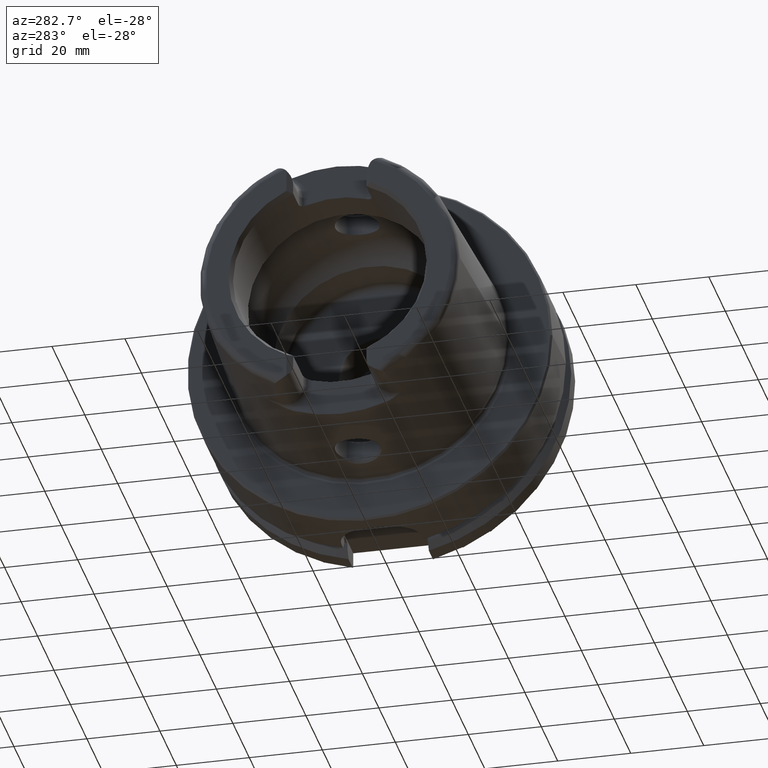
[diagram: clean part render]
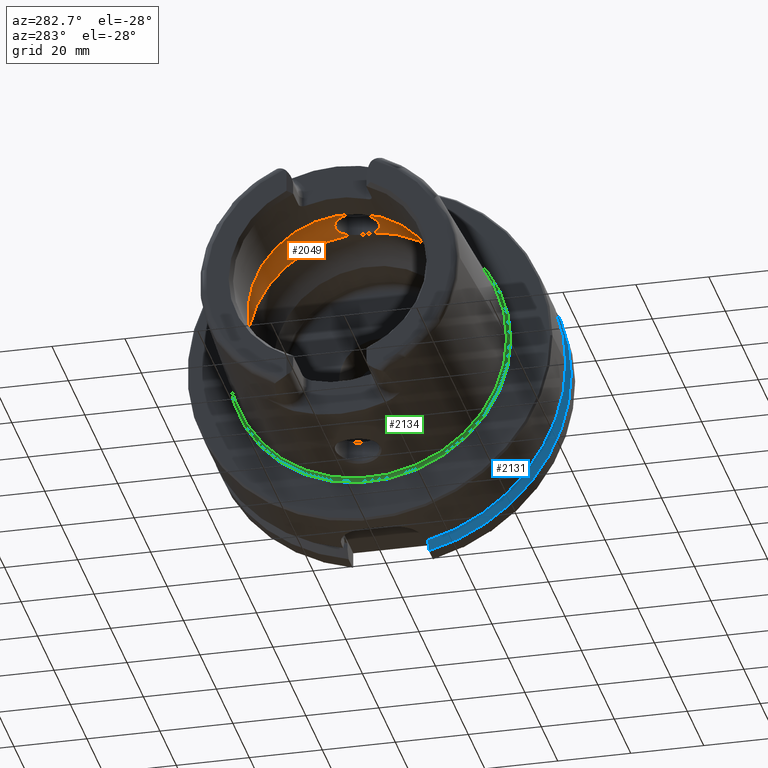
[diagram: same view with three faces highlighted in distinct colors, each labeled with its STEP entity id]
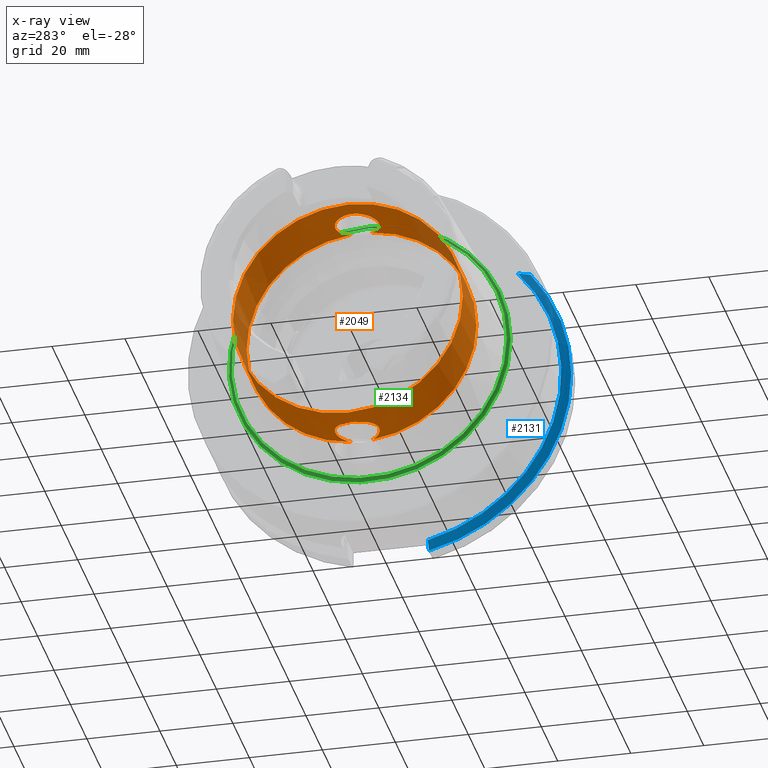
[diagram: x-ray of the same camera — body ghosted, the three highlighted faces saturated]
A machine part, auxiliary view with three faces highlighted in distinct colors.
The next image is the same camera in x-ray (body ghosted, the three faces saturated) — at least one of them is partly hidden behind the body in this view.
Their STEP definitions:

[orange] entity #2049 — the highlighted cylindrical surface (bore or boss wall) has radius 31.5 mm, axis along (-1, 0, 0).
#49=B_SPLINE_CURVE_WITH_KNOTS('',3,(#3659,#3660,#3661,#3662,#3663,#3664,
#3665,#3666,#3667,#3668,#3669,#3670,#3671,#3672,#3673,#3674,#3675,#3676,
#3677,#3678,#3679,#3680,#3681,#3682,#3683,#3684,#3685,#3686,#3687,#3688,
#3689),.UNSPECIFIED.,.F.,.F.,(4,2,2,2,2,2,2,2,2,2,2,3,2,2,4),(-2.42966289251045,
-2.26609494287567,-2.03948128472637,-1.81286762657707,-1.58625396842777,
-1.35964031027847,-1.1330370617835,-0.906433813288535,-0.679830564793567,
-0.453227316298599,-0.226613658149299,0.,0.2266136581493,0.453227316298599,
0.616795265988555),.UNSPECIFIED.);
#54=B_SPLINE_CURVE_WITH_KNOTS('',3,(#3851,#3852,#3853,#3854,#3855,#3856,
#3857,#3858,#3859,#3860,#3861,#3862,#3863,#3864,#3865,#3866,#3867,#3868,
#3869,#3870,#3871,#3872,#3873,#3874,#3875,#3876,#3877,#3878,#3879,#3880,
#3881),.UNSPECIFIED.,.F.,.F.,(4,2,2,3,2,2,2,2,2,2,2,2,2,2,4),(-0.616795265933374,
-0.453227316298598,-0.226613658149299,0.,0.2266136581493,0.453227316298599,
0.679830564793567,0.906433813288535,1.1330370617835,1.35964031027847,1.58625396842777,
1.81286762657707,2.03948128472637,2.26609494287567,2.42966289256562),
 .UNSPECIFIED.);
#187=CYLINDRICAL_SURFACE('',#2250,31.5);
#248=FACE_OUTER_BOUND('',#379,.T.);
#379=EDGE_LOOP('',(#1542,#1543,#1544,#1545,#1546,#1547,#1548,#1549,#1550));
#510=LINE('',#3897,#616);
#616=VECTOR('',#2656,31.5);
#730=CIRCLE('',#2251,31.5);
#731=CIRCLE('',#2252,31.5);
#732=CIRCLE('',#2253,31.5);
#733=CIRCLE('',#2254,31.5);
#734=CIRCLE('',#2255,31.5);
#909=VERTEX_POINT('',#3647);
#910=VERTEX_POINT('',#3658);
#913=VERTEX_POINT('',#3838);
#915=VERTEX_POINT('',#3850);
#916=VERTEX_POINT('',#3894);
#917=VERTEX_POINT('',#3896);
#918=VERTEX_POINT('',#3898);
#1146=EDGE_CURVE('',#910,#909,#49,.T.);
#1152=EDGE_CURVE('',#915,#913,#54,.T.);
#1155=EDGE_CURVE('',#916,#913,#730,.T.);
#1156=EDGE_CURVE('',#916,#917,#510,.T.);
#1157=EDGE_CURVE('',#917,#918,#731,.T.);
#1158=EDGE_CURVE('',#918,#917,#732,.T.);
#1159=EDGE_CURVE('',#910,#916,#733,.T.);
#1160=EDGE_CURVE('',#915,#909,#734,.T.);
#1542=ORIENTED_EDGE('',*,*,#1152,.T.);
#1543=ORIENTED_EDGE('',*,*,#1155,.F.);
#1544=ORIENTED_EDGE('',*,*,#1156,.T.);
#1545=ORIENTED_EDGE('',*,*,#1157,.T.);
#1546=ORIENTED_EDGE('',*,*,#1158,.T.);
#1547=ORIENTED_EDGE('',*,*,#1156,.F.);
#1548=ORIENTED_EDGE('',*,*,#1159,.F.);
#1549=ORIENTED_EDGE('',*,*,#1146,.T.);
#1550=ORIENTED_EDGE('',*,*,#1160,.F.);
#2049=ADVANCED_FACE('',(#248),#187,.F.);
#2250=AXIS2_PLACEMENT_3D('',#3893,#2652,#2653);
#2251=AXIS2_PLACEMENT_3D('',#3895,#2654,#2655);
#2252=AXIS2_PLACEMENT_3D('',#3899,#2657,#2658);
#2253=AXIS2_PLACEMENT_3D('',#3900,#2659,#2660);
#2254=AXIS2_PLACEMENT_3D('',#3901,#2661,#2662);
#2255=AXIS2_PLACEMENT_3D('',#3902,#2663,#2664);
#2652=DIRECTION('center_axis',(-1.,0.,0.));
#2653=DIRECTION('ref_axis',(0.,1.,0.));
#2654=DIRECTION('center_axis',(-1.,0.,0.));
#2655=DIRECTION('ref_axis',(0.,0.,1.));
#2656=DIRECTION('',(-1.,0.,0.));
#2657=DIRECTION('center_axis',(-1.,0.,0.));
#2658=DIRECTION('ref_axis',(0.,0.,1.));
#2659=DIRECTION('center_axis',(-1.,0.,0.));
#2660=DIRECTION('ref_axis',(0.,0.,1.));
#2661=DIRECTION('center_axis',(-1.,0.,0.));
#2662=DIRECTION('ref_axis',(0.,0.,1.));
#2663=DIRECTION('center_axis',(-1.,0.,0.));
#2664=DIRECTION('ref_axis',(0.,0.,1.));
#3647=CARTESIAN_POINT('',(-9.74679434480896,2.89893607109041,-31.3663222207471));
#3658=CARTESIAN_POINT('',(-9.74679434480896,-2.89893607109041,-31.3663222207471));
#3659=CARTESIAN_POINT('Ctrl Pts',(-9.74679434480898,-2.8989360710904,-31.3663222207471));
#3660=CARTESIAN_POINT('Ctrl Pts',(-10.0245557799842,-3.40227174537722,-31.3198029657389));
#3661=CARTESIAN_POINT('Ctrl Pts',(-10.3735944692601,-3.85887584349869,-31.2651415110221));
#3662=CARTESIAN_POINT('Ctrl Pts',(-11.289042660848,-4.77432403508655,-31.140708727458));
#3663=CARTESIAN_POINT('Ctrl Pts',(-11.9624834305428,-5.23577180141274,-31.0633803744766));
#3664=CARTESIAN_POINT('Ctrl Pts',(-13.4401908644727,-5.84865855662958,-30.9538382316308));
#3665=CARTESIAN_POINT('Ctrl Pts',(-14.2446211395023,-6.00000000000001,-30.9232921921325));
#3666=CARTESIAN_POINT('Ctrl Pts',(-15.7553788604977,-6.00000000000001,-30.9232921921325));
#3667=CARTESIAN_POINT('Ctrl Pts',(-16.5598091355273,-5.84865855662958,-30.9538382316308));
#3668=CARTESIAN_POINT('Ctrl Pts',(-18.0375165694572,-5.23577180141275,-31.0633803744766));
#3669=CARTESIAN_POINT('Ctrl Pts',(-18.710957339152,-4.77432403508655,-31.140708727458));
#3670=CARTESIAN_POINT('Ctrl Pts',(-19.7742996118461,-3.71098176239249,-31.2852440928545));
#3671=CARTESIAN_POINT('Ctrl Pts',(-20.2357665181958,-3.03753058698362,-31.3619556484746));
#3672=CARTESIAN_POINT('Ctrl Pts',(-20.8486671603361,-1.55978711209124,-31.4700797313679));
#3673=CARTESIAN_POINT('Ctrl Pts',(-21.,-0.755344161649895,-31.5));
#3674=CARTESIAN_POINT('Ctrl Pts',(-21.,0.755344161649892,-31.5));
#3675=CARTESIAN_POINT('Ctrl Pts',(-20.8486671603361,1.55978711209124,-31.4700797313679));
#3676=CARTESIAN_POINT('Ctrl Pts',(-20.2357665181958,3.03753058698362,-31.3619556484746));
#3677=CARTESIAN_POINT('Ctrl Pts',(-19.7742996118461,3.71098176239249,-31.2852440928545));
#3678=CARTESIAN_POINT('Ctrl Pts',(-18.710957339152,4.77432403508655,-31.140708727458));
#3679=CARTESIAN_POINT('Ctrl Pts',(-18.0375165694572,5.23577180141274,-31.0633803744766));
#3680=CARTESIAN_POINT('Ctrl Pts',(-16.5598091355273,5.84865855662958,-30.9538382316308));
#3681=CARTESIAN_POINT('Ctrl Pts',(-15.7553788604977,6.00000000000001,-30.9232921921325));
#3682=CARTESIAN_POINT('Ctrl Pts',(-15.,6.00000000000001,-30.9232921921325));
#3683=CARTESIAN_POINT('Ctrl Pts',(-14.2446211395023,6.00000000000001,-30.9232921921325));
#3684=CARTESIAN_POINT('Ctrl Pts',(-13.4401908644727,5.84865855662958,-30.9538382316308));
#3685=CARTESIAN_POINT('Ctrl Pts',(-11.9624834305428,5.23577180141274,-31.0633803744766));
#3686=CARTESIAN_POINT('Ctrl Pts',(-11.289042660848,4.77432403508655,-31.140708727458));
#3687=CARTESIAN_POINT('Ctrl Pts',(-10.3735944691306,3.85887584336922,-31.2651415110397));
#3688=CARTESIAN_POINT('Ctrl Pts',(-10.0245557801354,3.40227174565105,-31.3198029657135));
#3689=CARTESIAN_POINT('Ctrl Pts',(-9.74679434480898,2.8989360710904,-31.3663222207471));
#3838=CARTESIAN_POINT('',(-9.74679434480896,-2.89893607109042,31.3663222207471));
#3850=CARTESIAN_POINT('',(-9.74679434480896,2.89893607109042,31.3663222207471));
#3851=CARTESIAN_POINT('Ctrl Pts',(-9.74679434480897,2.89893607109041,31.3663222207471));
#3852=CARTESIAN_POINT('Ctrl Pts',(-10.0245557799842,3.40227174537723,31.3198029657389));
#3853=CARTESIAN_POINT('Ctrl Pts',(-10.3735944692601,3.85887584349869,31.2651415110221));
#3854=CARTESIAN_POINT('Ctrl Pts',(-11.289042660848,4.77432403508655,31.140708727458));
#3855=CARTESIAN_POINT('Ctrl Pts',(-11.9624834305428,5.23577180141274,31.0633803744766));
#3856=CARTESIAN_POINT('Ctrl Pts',(-13.4401908644727,5.84865855662958,30.9538382316308));
#3857=CARTESIAN_POINT('Ctrl Pts',(-14.2446211395023,6.00000000000001,30.9232921921325));
#3858=CARTESIAN_POINT('Ctrl Pts',(-15.,6.00000000000001,30.9232921921325));
#3859=CARTESIAN_POINT('Ctrl Pts',(-15.7553788604977,6.00000000000001,30.9232921921325));
#3860=CARTESIAN_POINT('Ctrl Pts',(-16.5598091355273,5.84865855662958,30.9538382316308));
#3861=CARTESIAN_POINT('Ctrl Pts',(-18.0375165694572,5.23577180141274,31.0633803744766));
#3862=CARTESIAN_POINT('Ctrl Pts',(-18.710957339152,4.77432403508655,31.140708727458));
#3863=CARTESIAN_POINT('Ctrl Pts',(-19.7742996118461,3.71098176239249,31.2852440928545));
#3864=CARTESIAN_POINT('Ctrl Pts',(-20.2357665181958,3.03753058698362,31.3619556484746));
#3865=CARTESIAN_POINT('Ctrl Pts',(-20.8486671603361,1.55978711209124,31.4700797313679));
#3866=CARTESIAN_POINT('Ctrl Pts',(-21.,0.755344161649892,31.5));
#3867=CARTESIAN_POINT('Ctrl Pts',(-21.,-0.755344161649894,31.5));
#3868=CARTESIAN_POINT('Ctrl Pts',(-20.8486671603361,-1.55978711209124,31.4700797313679));
#3869=CARTESIAN_POINT('Ctrl Pts',(-20.2357665181958,-3.03753058698362,31.3619556484746));
#3870=CARTESIAN_POINT('Ctrl Pts',(-19.7742996118461,-3.71098176239249,31.2852440928545));
#3871=CARTESIAN_POINT('Ctrl Pts',(-18.710957339152,-4.77432403508655,31.140708727458));
#3872=CARTESIAN_POINT('Ctrl Pts',(-18.0375165694572,-5.23577180141274,31.0633803744766));
#3873=CARTESIAN_POINT('Ctrl Pts',(-16.5598091355273,-5.84865855662958,30.9538382316308));
#3874=CARTESIAN_POINT('Ctrl Pts',(-15.7553788604977,-6.00000000000001,30.9232921921325));
#3875=CARTESIAN_POINT('Ctrl Pts',(-14.2446211395023,-6.00000000000001,30.9232921921325));
#3876=CARTESIAN_POINT('Ctrl Pts',(-13.4401908644727,-5.84865855662958,30.9538382316308));
#3877=CARTESIAN_POINT('Ctrl Pts',(-11.9624834305428,-5.23577180141274,31.0633803744766));
#3878=CARTESIAN_POINT('Ctrl Pts',(-11.289042660848,-4.77432403508655,31.140708727458));
#3879=CARTESIAN_POINT('Ctrl Pts',(-10.3735944691306,-3.85887584336922,31.2651415110397));
#3880=CARTESIAN_POINT('Ctrl Pts',(-10.0245557801353,-3.40227174565106,31.3198029657135));
#3881=CARTESIAN_POINT('Ctrl Pts',(-9.74679434480897,-2.89893607109041,31.3663222207471));
#3893=CARTESIAN_POINT('Origin',(-18.1430342013226,0.,0.));
#3894=CARTESIAN_POINT('',(-9.74679434480896,-31.5,3.85763741731416E-15));
#3895=CARTESIAN_POINT('Origin',(-9.74679434480896,0.,0.));
#3896=CARTESIAN_POINT('',(-26.5392740578363,-31.5,3.85763741731416E-15));
#3897=CARTESIAN_POINT('',(-18.1430342013226,-31.5,3.85763741731416E-15));
#3898=CARTESIAN_POINT('',(-26.5392740578363,-3.85763741731416E-15,-31.5));
#3899=CARTESIAN_POINT('Origin',(-26.5392740578363,0.,0.));
#3900=CARTESIAN_POINT('Origin',(-26.5392740578363,0.,0.));
#3901=CARTESIAN_POINT('Origin',(-9.74679434480896,0.,0.));
#3902=CARTESIAN_POINT('Origin',(-9.74679434480896,0.,0.));

[blue] entity #2131 — the highlighted conical surface has half-angle 60 deg.
#20=(
BOUNDED_CURVE()
B_SPLINE_CURVE(2,(#4064,#4065,#4066),.UNSPECIFIED.,.F.,.F.)
B_SPLINE_CURVE_WITH_KNOTS((3,3),(0.,0.343884390880419),.UNSPECIFIED.)
CURVE()
GEOMETRIC_REPRESENTATION_ITEM()
RATIONAL_B_SPLINE_CURVE((1.,1.00052016257005,1.))
REPRESENTATION_ITEM('')
);
#25=(
BOUNDED_CURVE()
B_SPLINE_CURVE(2,(#4279,#4280,#4281),.UNSPECIFIED.,.F.,.F.)
B_SPLINE_CURVE_WITH_KNOTS((3,3),(0.,0.28292349080556),.UNSPECIFIED.)
CURVE()
GEOMETRIC_REPRESENTATION_ITEM()
RATIONAL_B_SPLINE_CURVE((1.,1.0003193410929,1.))
REPRESENTATION_ITEM('')
);
#330=FACE_OUTER_BOUND('',#466,.T.);
#466=EDGE_LOOP('',(#1977,#1978,#1979,#1980));
#762=CIRCLE('',#2310,50.);
#815=CIRCLE('',#2417,47.5975952641917);
#944=VERTEX_POINT('',#4061);
#945=VERTEX_POINT('',#4063);
#979=VERTEX_POINT('',#4276);
#980=VERTEX_POINT('',#4278);
#1192=EDGE_CURVE('',#945,#944,#20,.T.);
#1242=EDGE_CURVE('',#980,#979,#25,.T.);
#1258=EDGE_CURVE('',#945,#979,#762,.T.);
#1345=EDGE_CURVE('',#944,#980,#815,.T.);
#1977=ORIENTED_EDGE('',*,*,#1192,.T.);
#1978=ORIENTED_EDGE('',*,*,#1345,.T.);
#1979=ORIENTED_EDGE('',*,*,#1242,.T.);
#1980=ORIENTED_EDGE('',*,*,#1258,.F.);
#2011=CONICAL_SURFACE('',#2418,48.7987976320958,1.0471975511966);
#2131=ADVANCED_FACE('',(#330),#2011,.T.);
#2310=AXIS2_PLACEMENT_3D('',#4341,#2811,#2812);
#2417=AXIS2_PLACEMENT_3D('',#4589,#3050,#3051);
#2418=AXIS2_PLACEMENT_3D('',#4590,#3052,#3053);
#2811=DIRECTION('center_axis',(1.,0.,0.));
#2812=DIRECTION('ref_axis',(0.,0.,-1.));
#3050=DIRECTION('center_axis',(1.,0.,0.));
#3051=DIRECTION('ref_axis',(0.,0.,-1.));
#3052=DIRECTION('center_axis',(1.,0.,0.));
#3053=DIRECTION('ref_axis',(0.,-0.951449961441176,-0.307803461438603));
#4061=CARTESIAN_POINT('',(21.875,-35.6830642593065,31.5));
#4063=CARTESIAN_POINT('',(23.2620290209214,-38.8297566307078,31.5));
#4064=CARTESIAN_POINT('Ctrl Pts',(23.2620290209214,-38.8297566307078,31.5));
#4065=CARTESIAN_POINT('Ctrl Pts',(22.5392272442767,-37.2176818849707,31.5));
#4066=CARTESIAN_POINT('Ctrl Pts',(21.875,-35.6830642593065,31.5));
#4276=CARTESIAN_POINT('',(23.2620290209214,-11.,-48.7749935930288));
#4278=CARTESIAN_POINT('',(21.875,-11.,-46.3090819919138));
#4279=CARTESIAN_POINT('Ctrl Pts',(21.875,-11.,-46.3090819919138));
#4280=CARTESIAN_POINT('Ctrl Pts',(22.5505288964237,-11.,-47.5116880808802));
#4281=CARTESIAN_POINT('Ctrl Pts',(23.2620290209214,-11.,-48.7749935930288));
#4341=CARTESIAN_POINT('Origin',(23.2620290209214,0.,0.));
#4589=CARTESIAN_POINT('Origin',(21.875,0.,0.));
#4590=CARTESIAN_POINT('Origin',(22.5685145104607,0.,0.));

[green] entity #2134 — the highlighted toroidal blend (fillet) surface has major radius 38.5073 mm and minor (blend) radius 0.8 mm.
#165=TOROIDAL_SURFACE('',#2424,38.5073016032064,0.8);
#333=FACE_OUTER_BOUND('',#469,.T.);
#469=EDGE_LOOP('',(#1990,#1991,#1992,#1993,#1994,#1995));
#806=CIRCLE('',#2400,38.6186400839745);
#807=CIRCLE('',#2401,38.6186400839745);
#817=CIRCLE('',#2422,37.7073016032064);
#818=CIRCLE('',#2423,37.7073016032064);
#819=CIRCLE('',#2425,0.8);
#1023=VERTEX_POINT('',#4566);
#1024=VERTEX_POINT('',#4567);
#1028=VERTEX_POINT('',#4596);
#1029=VERTEX_POINT('',#4597);
#1334=EDGE_CURVE('',#1023,#1024,#806,.T.);
#1335=EDGE_CURVE('',#1024,#1023,#807,.T.);
#1348=EDGE_CURVE('',#1028,#1029,#817,.T.);
#1350=EDGE_CURVE('',#1029,#1028,#818,.T.);
#1351=EDGE_CURVE('',#1029,#1024,#819,.T.);
#1990=ORIENTED_EDGE('',*,*,#1348,.T.);
#1991=ORIENTED_EDGE('',*,*,#1351,.T.);
#1992=ORIENTED_EDGE('',*,*,#1334,.F.);
#1993=ORIENTED_EDGE('',*,*,#1335,.F.);
#1994=ORIENTED_EDGE('',*,*,#1351,.F.);
#1995=ORIENTED_EDGE('',*,*,#1350,.T.);
#2134=ADVANCED_FACE('',(#333),#165,.F.);
#2400=AXIS2_PLACEMENT_3D('',#4568,#3014,#3015);
#2401=AXIS2_PLACEMENT_3D('',#4569,#3016,#3017);
#2422=AXIS2_PLACEMENT_3D('',#4598,#3061,#3062);
#2423=AXIS2_PLACEMENT_3D('',#4600,#3064,#3065);
#2424=AXIS2_PLACEMENT_3D('',#4601,#3066,#3067);
#2425=AXIS2_PLACEMENT_3D('',#4602,#3068,#3069);
#3014=DIRECTION('center_axis',(1.,0.,0.));
#3015=DIRECTION('ref_axis',(0.,0.,-1.));
#3016=DIRECTION('center_axis',(1.,0.,0.));
#3017=DIRECTION('ref_axis',(0.,0.,-1.));
#3061=DIRECTION('center_axis',(1.,0.,0.));
#3062=DIRECTION('ref_axis',(0.,0.,-1.));
#3064=DIRECTION('center_axis',(1.,0.,0.));
#3065=DIRECTION('ref_axis',(0.,0.,-1.));
#3066=DIRECTION('center_axis',(1.,0.,0.));
#3067=DIRECTION('ref_axis',(0.,0.,-1.));
#3068=DIRECTION('center_axis',(0.,-1.,-1.22464679914735E-16));
#3069=DIRECTION('ref_axis',(0.,-1.22464679914735E-16,1.));
#4566=CARTESIAN_POINT('',(0.0922144549932558,-38.6186400839745,-4.7294193966263E-15));
#4567=CARTESIAN_POINT('',(0.0922144549932559,-4.7294193966263E-15,38.6186400839745));
#4568=CARTESIAN_POINT('Origin',(0.0922144549932559,0.,0.));
#4569=CARTESIAN_POINT('Origin',(0.0922144549932559,0.,0.));
#4596=CARTESIAN_POINT('',(-0.7,-37.7073016032064,-4.61781262128506E-15));
#4597=CARTESIAN_POINT('',(-0.7,-4.61781262128506E-15,37.7073016032064));
#4598=CARTESIAN_POINT('Origin',(-0.7,0.,0.));
#4600=CARTESIAN_POINT('Origin',(-0.7,0.,0.));
#4601=CARTESIAN_POINT('Origin',(-0.7,0.,0.));
#4602=CARTESIAN_POINT('Origin',(-0.7,-4.71578436521685E-15,38.5073016032064));